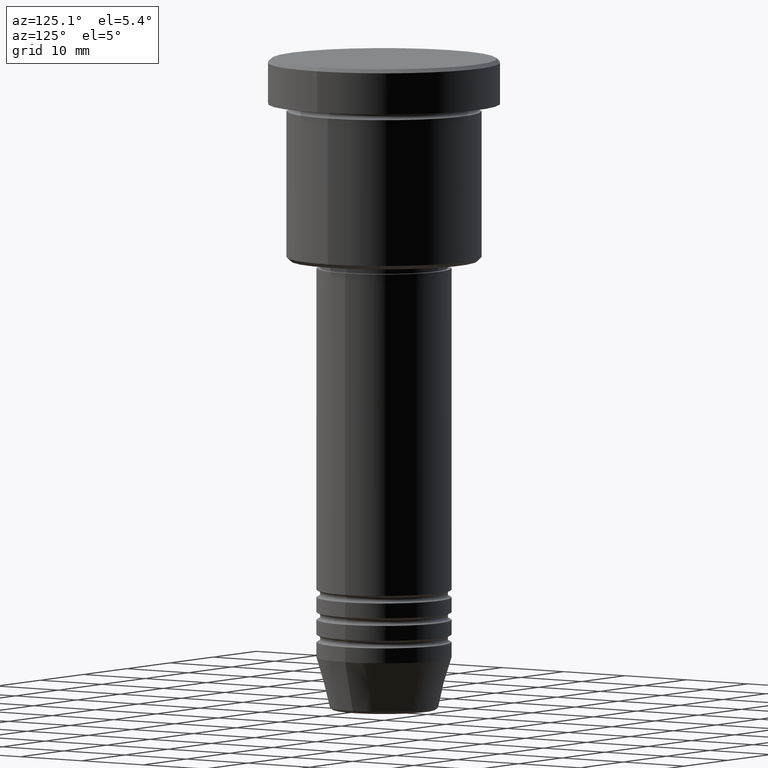
[diagram: clean part render]
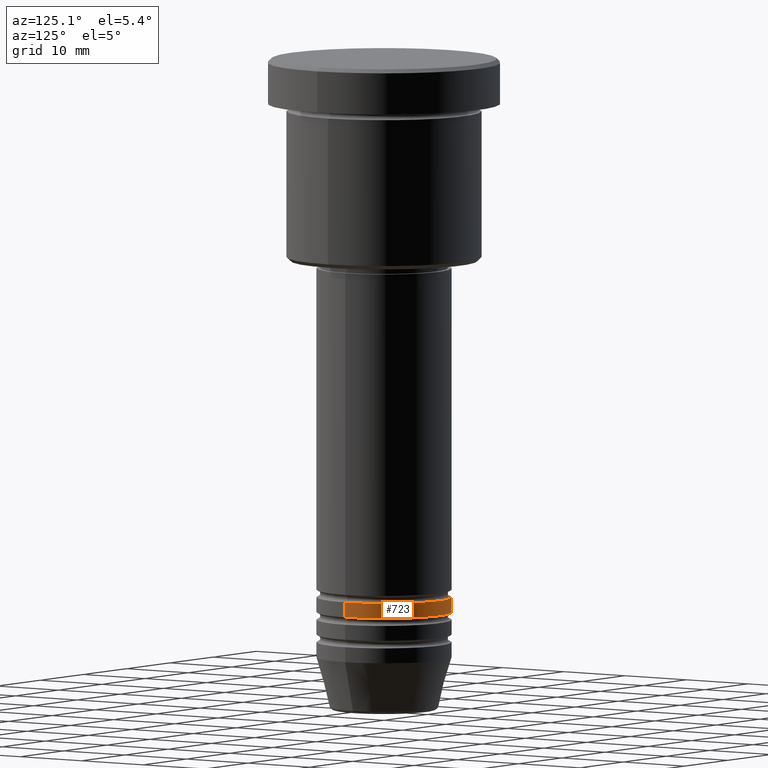
[diagram: same view with one face highlighted and labeled with its STEP entity id]
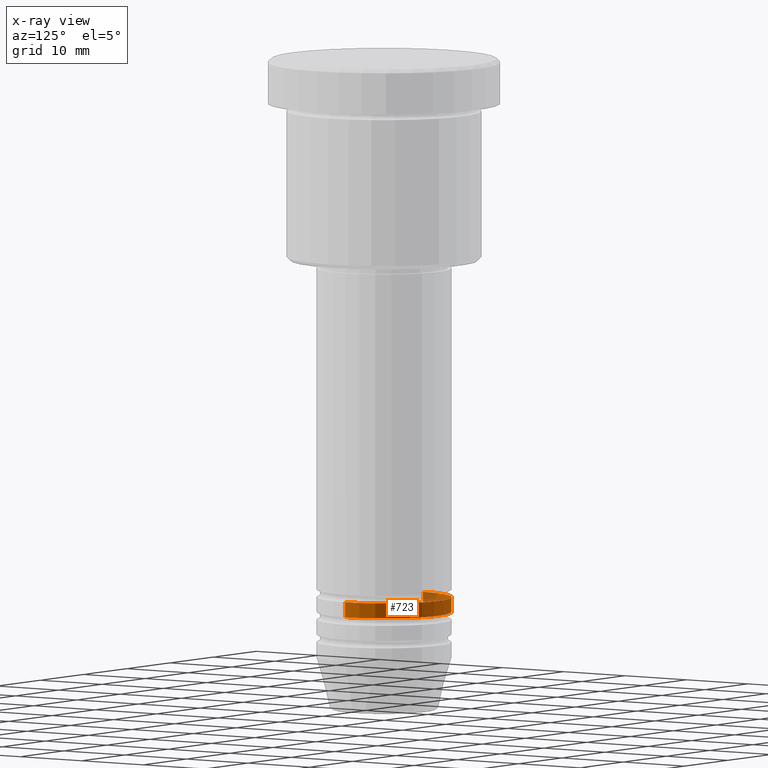
[diagram: x-ray of the same camera — body ghosted, the highlighted face saturated]
A machine part, auxiliary view. The second image highlights one B-rep face of the part: STEP entity #723.
The next image is the same camera in x-ray: the body ghosted, the highlighted face saturated — about 7% of this face is hidden behind the body in this view.
In plain terms, the highlighted cylindrical surface (partial cylindrical patch) has radius 9 mm, axis along (-0, -0, 1).
Its self-contained STEP definition (entity closure, byte-faithful):
#42 = DIRECTION ( 'NONE',  ( -0.000000000000000000, -0.000000000000000000, 1.000000000000000000 ) ) ;
#55 = ORIENTED_EDGE ( 'NONE', *, *, #610, .T. ) ;
#124 = AXIS2_PLACEMENT_3D ( 'NONE', #212, #758, #808 ) ;
#132 = DIRECTION ( 'NONE',  ( 1.000000000000000000, 0.000000000000000000, 0.000000000000000000 ) ) ;
#136 = ORIENTED_EDGE ( 'NONE', *, *, #828, .F. ) ;
#160 = LINE ( 'NONE', #986, #465 ) ;
#210 = CARTESIAN_POINT ( 'NONE',  ( 9.000000000000000000, 0.000000000000000000, -71.99999999999997158 ) ) ;
#212 = CARTESIAN_POINT ( 'NONE',  ( 0.000000000000000000, 0.000000000000000000, 0.000000000000000000 ) ) ;
#247 = CARTESIAN_POINT ( 'NONE',  ( 9.000000000000000000, 0.000000000000000000, -73.99999999999997158 ) ) ;
#249 = DIRECTION ( 'NONE',  ( -0.000000000000000000, -0.000000000000000000, 1.000000000000000000 ) ) ;
#278 = CIRCLE ( 'NONE', #991, 9.000000000000000000 ) ;
#295 = EDGE_LOOP ( 'NONE', ( #55, #861, #944, #136 ) ) ;
#307 = CIRCLE ( 'NONE', #817, 9.000000000000000000 ) ;
#312 = CARTESIAN_POINT ( 'NONE',  ( -9.000000000000000000, 1.102182119232617714E-15, -71.99999999999997158 ) ) ;
#329 = LINE ( 'NONE', #602, #1039 ) ;
#358 = CARTESIAN_POINT ( 'NONE',  ( 0.000000000000000000, 0.000000000000000000, -73.99999999999997158 ) ) ;
#389 = CYLINDRICAL_SURFACE ( 'NONE', #124, 9.000000000000000000 ) ;
#406 = VERTEX_POINT ( 'NONE', #247 ) ;
#418 = VERTEX_POINT ( 'NONE', #485 ) ;
#465 = VECTOR ( 'NONE', #531, 1000.000000000000000 ) ;
#485 = CARTESIAN_POINT ( 'NONE',  ( -9.000000000000000000, 1.102182119232617714E-15, -73.99999999999997158 ) ) ;
#531 = DIRECTION ( 'NONE',  ( -0.000000000000000000, -0.000000000000000000, 1.000000000000000000 ) ) ;
#602 = CARTESIAN_POINT ( 'NONE',  ( 9.000000000000000000, 0.000000000000000000, 0.000000000000000000 ) ) ;
#610 = EDGE_CURVE ( 'NONE', #406, #418, #278, .T. ) ;
#633 = DIRECTION ( 'NONE',  ( 1.000000000000000000, 0.000000000000000000, 0.000000000000000000 ) ) ;
#646 = EDGE_CURVE ( 'NONE', #418, #1073, #160, .T. ) ;
#723 = ADVANCED_FACE ( 'NONE', ( #1026 ), #389, .T. ) ;
#758 = DIRECTION ( 'NONE',  ( -0.000000000000000000, -0.000000000000000000, 1.000000000000000000 ) ) ;
#808 = DIRECTION ( 'NONE',  ( 1.000000000000000000, 0.000000000000000000, 0.000000000000000000 ) ) ;
#817 = AXIS2_PLACEMENT_3D ( 'NONE', #1042, #42, #132 ) ;
#823 = EDGE_CURVE ( 'NONE', #973, #1073, #307, .T. ) ;
#828 = EDGE_CURVE ( 'NONE', #406, #973, #329, .T. ) ;
#861 = ORIENTED_EDGE ( 'NONE', *, *, #646, .T. ) ;
#944 = ORIENTED_EDGE ( 'NONE', *, *, #823, .F. ) ;
#973 = VERTEX_POINT ( 'NONE', #210 ) ;
#986 = CARTESIAN_POINT ( 'NONE',  ( -9.000000000000000000, 1.102182119232617714E-15, 0.000000000000000000 ) ) ;
#991 = AXIS2_PLACEMENT_3D ( 'NONE', #358, #1092, #633 ) ;
#1026 = FACE_OUTER_BOUND ( 'NONE', #295, .T. ) ;
#1039 = VECTOR ( 'NONE', #249, 1000.000000000000000 ) ;
#1042 = CARTESIAN_POINT ( 'NONE',  ( 0.000000000000000000, 0.000000000000000000, -71.99999999999997158 ) ) ;
#1073 = VERTEX_POINT ( 'NONE', #312 ) ;
#1092 = DIRECTION ( 'NONE',  ( -0.000000000000000000, -0.000000000000000000, 1.000000000000000000 ) ) ;